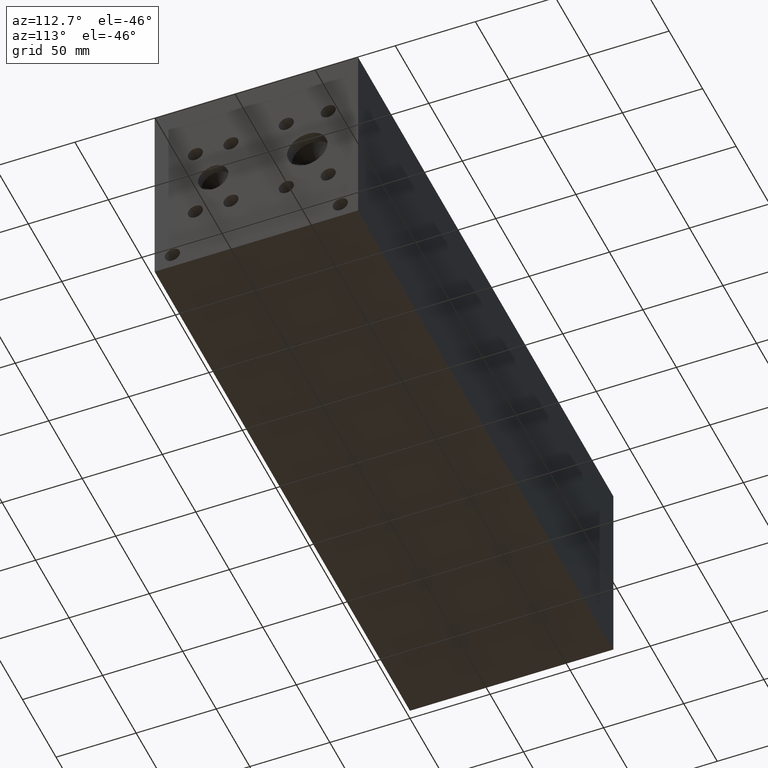
[diagram: clean part render]
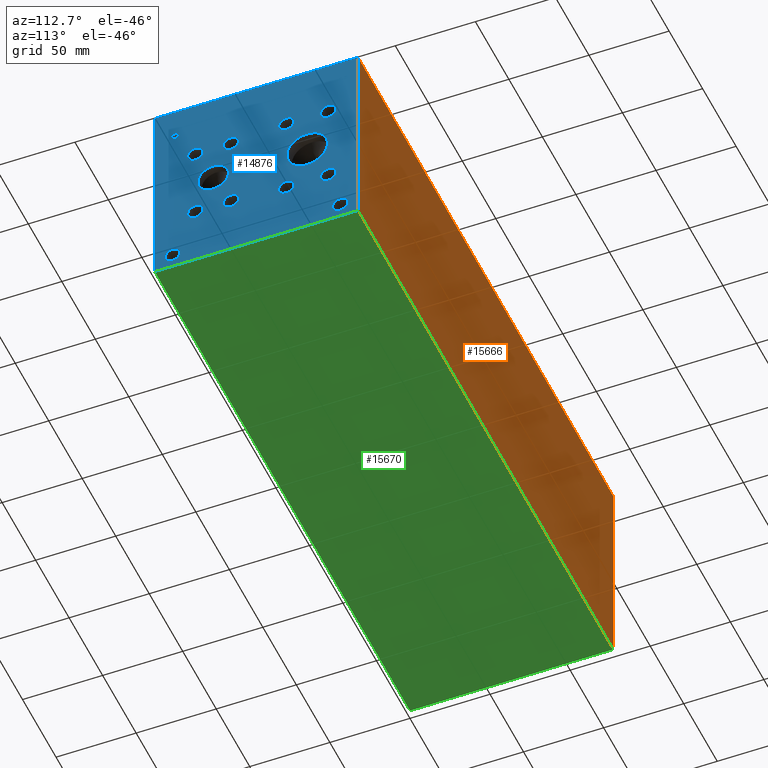
[diagram: same view with three faces highlighted in distinct colors, each labeled with its STEP entity id]
A machine part, auxiliary view with three faces highlighted in distinct colors.
Their STEP definitions:

[orange] entity #15666 — the highlighted planar face has unit normal (0, 1, 0).
#1342=PLANE('',#16826);
#2154=FACE_OUTER_BOUND('',#3129,.T.);
#3129=EDGE_LOOP('',(#14111,#14112,#14113,#14114));
#3191=LINE('',#20666,#4525);
#3253=LINE('',#20976,#4587);
#4490=LINE('',#27114,#5824);
#4491=LINE('',#27115,#5825);
#4525=VECTOR('',#16886,10.);
#4587=VECTOR('',#17034,10.);
#5824=VECTOR('',#20449,10.);
#5825=VECTOR('',#20450,10.);
#6189=VERTEX_POINT('',#20663);
#6190=VERTEX_POINT('',#20665);
#6264=VERTEX_POINT('',#20969);
#6267=VERTEX_POINT('',#20974);
#7745=EDGE_CURVE('',#6189,#6190,#3191,.T.);
#7847=EDGE_CURVE('',#6264,#6267,#3253,.T.);
#9857=EDGE_CURVE('',#6189,#6264,#4490,.T.);
#9858=EDGE_CURVE('',#6190,#6267,#4491,.T.);
#14111=ORIENTED_EDGE('',*,*,#9857,.T.);
#14112=ORIENTED_EDGE('',*,*,#7847,.T.);
#14113=ORIENTED_EDGE('',*,*,#9858,.F.);
#14114=ORIENTED_EDGE('',*,*,#7745,.F.);
#15666=ADVANCED_FACE('',(#2154),#1342,.T.);
#16826=AXIS2_PLACEMENT_3D('',#27113,#20447,#20448);
#16886=DIRECTION('',(0.,0.,1.));
#17034=DIRECTION('',(0.,0.,1.));
#20447=DIRECTION('center_axis',(0.,1.,0.));
#20448=DIRECTION('ref_axis',(-1.,0.,0.));
#20449=DIRECTION('',(-1.,0.,0.));
#20450=DIRECTION('',(-1.,0.,0.));
#20663=CARTESIAN_POINT('',(381.,127.,0.));
#20665=CARTESIAN_POINT('',(381.,127.,127.));
#20666=CARTESIAN_POINT('',(381.,127.,0.));
#20969=CARTESIAN_POINT('',(0.,127.,0.));
#20974=CARTESIAN_POINT('',(0.,127.,127.));
#20976=CARTESIAN_POINT('',(0.,127.,0.));
#27113=CARTESIAN_POINT('Origin',(381.,127.,0.));
#27114=CARTESIAN_POINT('',(381.,127.,0.));
#27115=CARTESIAN_POINT('',(381.,127.,127.));

[blue] entity #14876 — the highlighted planar face has unit normal (1, 0, 0).
#235=CIRCLE('',#15695,12.7);
#236=CIRCLE('',#15696,12.7);
#237=CIRCLE('',#15697,4.7625);
#238=CIRCLE('',#15698,4.7625);
#239=CIRCLE('',#15699,4.7625);
#240=CIRCLE('',#15700,4.7625);
#241=CIRCLE('',#15701,4.7625);
#242=CIRCLE('',#15702,4.7625);
#243=CIRCLE('',#15703,4.7625);
#244=CIRCLE('',#15704,4.7625);
#245=CIRCLE('',#15705,4.7625);
#246=CIRCLE('',#15706,4.7625);
#247=CIRCLE('',#15707,4.7625);
#248=CIRCLE('',#15708,4.7625);
#249=CIRCLE('',#15709,4.7625);
#250=CIRCLE('',#15710,4.7625);
#251=CIRCLE('',#15711,4.7625);
#252=CIRCLE('',#15712,4.7625);
#253=CIRCLE('',#15713,9.525);
#254=CIRCLE('',#15714,9.525);
#255=CIRCLE('',#15715,4.7625);
#256=CIRCLE('',#15716,4.7625);
#257=CIRCLE('',#15717,4.7625);
#258=CIRCLE('',#15718,4.7625);
#735=FACE_BOUND('',#2178,.T.);
#736=FACE_BOUND('',#2179,.T.);
#737=FACE_BOUND('',#2180,.T.);
#738=FACE_BOUND('',#2181,.T.);
#739=FACE_BOUND('',#2182,.T.);
#740=FACE_BOUND('',#2183,.T.);
#741=FACE_BOUND('',#2184,.T.);
#742=FACE_BOUND('',#2185,.T.);
#743=FACE_BOUND('',#2186,.T.);
#744=FACE_BOUND('',#2187,.T.);
#745=FACE_BOUND('',#2188,.T.);
#746=FACE_BOUND('',#2189,.T.);
#747=FACE_BOUND('',#2190,.T.);
#748=FACE_BOUND('',#2191,.T.);
#930=PLANE('',#15694);
#1364=FACE_OUTER_BOUND('',#2177,.T.);
#2177=EDGE_LOOP('',(#9939,#9940,#9941,#9942));
#2178=EDGE_LOOP('',(#9943,#9944));
#2179=EDGE_LOOP('',(#9945,#9946));
#2180=EDGE_LOOP('',(#9947,#9948));
#2181=EDGE_LOOP('',(#9949,#9950));
#2182=EDGE_LOOP('',(#9951,#9952));
#2183=EDGE_LOOP('',(#9953,#9954));
#2184=EDGE_LOOP('',(#9955,#9956));
#2185=EDGE_LOOP('',(#9957,#9958));
#2186=EDGE_LOOP('',(#9959,#9960));
#2187=EDGE_LOOP('',(#9961,#9962));
#2188=EDGE_LOOP('',(#9963,#9964));
#2189=EDGE_LOOP('',(#9965,#9966));
#2190=EDGE_LOOP('',(#9967,#9968,#9969,#9970,#9971,#9972,#9973,#9974));
#2191=EDGE_LOOP('',(#9975,#9976,#9977,#9978,#9979,#9980,#9981,#9982,#9983));
#3174=LINE('',#20597,#4508);
#3177=LINE('',#20603,#4511);
#3180=LINE('',#20609,#4514);
#3183=LINE('',#20615,#4517);
#3186=LINE('',#20621,#4520);
#3190=LINE('',#20664,#4524);
#3191=LINE('',#20666,#4525);
#3192=LINE('',#20668,#4526);
#3193=LINE('',#20669,#4527);
#3194=LINE('',#20720,#4528);
#3195=LINE('',#20722,#4529);
#3196=LINE('',#20724,#4530);
#3197=LINE('',#20726,#4531);
#3198=LINE('',#20728,#4532);
#3199=LINE('',#20730,#4533);
#3200=LINE('',#20732,#4534);
#3201=LINE('',#20733,#4535);
#4508=VECTOR('',#16857,10.);
#4511=VECTOR('',#16862,10.);
#4514=VECTOR('',#16867,10.);
#4517=VECTOR('',#16872,10.);
#4520=VECTOR('',#16877,10.);
#4524=VECTOR('',#16885,10.);
#4525=VECTOR('',#16886,10.);
#4526=VECTOR('',#16887,10.);
#4527=VECTOR('',#16888,10.);
#4528=VECTOR('',#16937,10.);
#4529=VECTOR('',#16938,10.);
#4530=VECTOR('',#16939,10.);
#4531=VECTOR('',#16940,10.);
#4532=VECTOR('',#16941,10.);
#4533=VECTOR('',#16942,10.);
#4534=VECTOR('',#16943,10.);
#4535=VECTOR('',#16944,10.);
#5834=B_SPLINE_CURVE_WITH_KNOTS('',2,(#20564,#20565,#20566,#20567),
 .UNSPECIFIED.,.F.,.F.,(3,1,3),(0.,1.,2.),.UNSPECIFIED.);
#5836=B_SPLINE_CURVE_WITH_KNOTS('',2,(#20585,#20586,#20587,#20588),
 .UNSPECIFIED.,.F.,.F.,(3,1,3),(0.,1.,2.),.UNSPECIFIED.);
#5838=B_SPLINE_CURVE_WITH_KNOTS('',2,(#20634,#20635,#20636,#20637),
 .UNSPECIFIED.,.F.,.F.,(3,1,3),(0.,1.,2.),.UNSPECIFIED.);
#5840=B_SPLINE_CURVE_WITH_KNOTS('',2,(#20652,#20653,#20654,#20655),
 .UNSPECIFIED.,.F.,.F.,(3,1,3),(0.,1.,2.),.UNSPECIFIED.);
#6170=VERTEX_POINT('',#20562);
#6171=VERTEX_POINT('',#20563);
#6174=VERTEX_POINT('',#20584);
#6176=VERTEX_POINT('',#20596);
#6178=VERTEX_POINT('',#20602);
#6180=VERTEX_POINT('',#20608);
#6182=VERTEX_POINT('',#20614);
#6184=VERTEX_POINT('',#20620);
#6186=VERTEX_POINT('',#20633);
#6188=VERTEX_POINT('',#20662);
#6189=VERTEX_POINT('',#20663);
#6190=VERTEX_POINT('',#20665);
#6191=VERTEX_POINT('',#20667);
#6192=VERTEX_POINT('',#20670);
#6193=VERTEX_POINT('',#20671);
#6194=VERTEX_POINT('',#20674);
#6195=VERTEX_POINT('',#20675);
#6196=VERTEX_POINT('',#20678);
#6197=VERTEX_POINT('',#20679);
#6198=VERTEX_POINT('',#20682);
#6199=VERTEX_POINT('',#20683);
#6200=VERTEX_POINT('',#20686);
#6201=VERTEX_POINT('',#20687);
#6202=VERTEX_POINT('',#20690);
#6203=VERTEX_POINT('',#20691);
#6204=VERTEX_POINT('',#20694);
#6205=VERTEX_POINT('',#20695);
#6206=VERTEX_POINT('',#20698);
#6207=VERTEX_POINT('',#20699);
#6208=VERTEX_POINT('',#20702);
#6209=VERTEX_POINT('',#20703);
#6210=VERTEX_POINT('',#20706);
#6211=VERTEX_POINT('',#20707);
#6212=VERTEX_POINT('',#20710);
#6213=VERTEX_POINT('',#20711);
#6214=VERTEX_POINT('',#20714);
#6215=VERTEX_POINT('',#20715);
#6216=VERTEX_POINT('',#20718);
#6217=VERTEX_POINT('',#20719);
#6218=VERTEX_POINT('',#20721);
#6219=VERTEX_POINT('',#20723);
#6220=VERTEX_POINT('',#20725);
#6221=VERTEX_POINT('',#20727);
#6222=VERTEX_POINT('',#20729);
#6223=VERTEX_POINT('',#20731);
#7717=EDGE_CURVE('',#6170,#6171,#5834,.T.);
#7721=EDGE_CURVE('',#6174,#6170,#5836,.T.);
#7724=EDGE_CURVE('',#6176,#6174,#3174,.T.);
#7727=EDGE_CURVE('',#6178,#6176,#3177,.T.);
#7730=EDGE_CURVE('',#6180,#6178,#3180,.T.);
#7733=EDGE_CURVE('',#6182,#6180,#3183,.T.);
#7736=EDGE_CURVE('',#6184,#6182,#3186,.T.);
#7739=EDGE_CURVE('',#6186,#6184,#5838,.T.);
#7742=EDGE_CURVE('',#6171,#6186,#5840,.T.);
#7744=EDGE_CURVE('',#6188,#6189,#3190,.T.);
#7745=EDGE_CURVE('',#6189,#6190,#3191,.T.);
#7746=EDGE_CURVE('',#6191,#6190,#3192,.T.);
#7747=EDGE_CURVE('',#6188,#6191,#3193,.T.);
#7748=EDGE_CURVE('',#6192,#6193,#235,.T.);
#7749=EDGE_CURVE('',#6193,#6192,#236,.T.);
#7750=EDGE_CURVE('',#6194,#6195,#237,.T.);
#7751=EDGE_CURVE('',#6195,#6194,#238,.T.);
#7752=EDGE_CURVE('',#6196,#6197,#239,.T.);
#7753=EDGE_CURVE('',#6197,#6196,#240,.T.);
#7754=EDGE_CURVE('',#6198,#6199,#241,.T.);
#7755=EDGE_CURVE('',#6199,#6198,#242,.T.);
#7756=EDGE_CURVE('',#6200,#6201,#243,.T.);
#7757=EDGE_CURVE('',#6201,#6200,#244,.T.);
#7758=EDGE_CURVE('',#6202,#6203,#245,.T.);
#7759=EDGE_CURVE('',#6203,#6202,#246,.T.);
#7760=EDGE_CURVE('',#6204,#6205,#247,.T.);
#7761=EDGE_CURVE('',#6205,#6204,#248,.T.);
#7762=EDGE_CURVE('',#6206,#6207,#249,.T.);
#7763=EDGE_CURVE('',#6207,#6206,#250,.T.);
#7764=EDGE_CURVE('',#6208,#6209,#251,.T.);
#7765=EDGE_CURVE('',#6209,#6208,#252,.T.);
#7766=EDGE_CURVE('',#6210,#6211,#253,.T.);
#7767=EDGE_CURVE('',#6211,#6210,#254,.T.);
#7768=EDGE_CURVE('',#6212,#6213,#255,.T.);
#7769=EDGE_CURVE('',#6213,#6212,#256,.T.);
#7770=EDGE_CURVE('',#6214,#6215,#257,.T.);
#7771=EDGE_CURVE('',#6215,#6214,#258,.T.);
#7772=EDGE_CURVE('',#6216,#6217,#3194,.T.);
#7773=EDGE_CURVE('',#6217,#6218,#3195,.T.);
#7774=EDGE_CURVE('',#6218,#6219,#3196,.T.);
#7775=EDGE_CURVE('',#6219,#6220,#3197,.T.);
#7776=EDGE_CURVE('',#6220,#6221,#3198,.T.);
#7777=EDGE_CURVE('',#6221,#6222,#3199,.T.);
#7778=EDGE_CURVE('',#6222,#6223,#3200,.T.);
#7779=EDGE_CURVE('',#6223,#6216,#3201,.T.);
#9939=ORIENTED_EDGE('',*,*,#7744,.T.);
#9940=ORIENTED_EDGE('',*,*,#7745,.T.);
#9941=ORIENTED_EDGE('',*,*,#7746,.F.);
#9942=ORIENTED_EDGE('',*,*,#7747,.F.);
#9943=ORIENTED_EDGE('',*,*,#7748,.T.);
#9944=ORIENTED_EDGE('',*,*,#7749,.T.);
#9945=ORIENTED_EDGE('',*,*,#7750,.T.);
#9946=ORIENTED_EDGE('',*,*,#7751,.T.);
#9947=ORIENTED_EDGE('',*,*,#7752,.T.);
#9948=ORIENTED_EDGE('',*,*,#7753,.T.);
#9949=ORIENTED_EDGE('',*,*,#7754,.T.);
#9950=ORIENTED_EDGE('',*,*,#7755,.T.);
#9951=ORIENTED_EDGE('',*,*,#7756,.T.);
#9952=ORIENTED_EDGE('',*,*,#7757,.T.);
#9953=ORIENTED_EDGE('',*,*,#7758,.T.);
#9954=ORIENTED_EDGE('',*,*,#7759,.T.);
#9955=ORIENTED_EDGE('',*,*,#7760,.T.);
#9956=ORIENTED_EDGE('',*,*,#7761,.T.);
#9957=ORIENTED_EDGE('',*,*,#7762,.T.);
#9958=ORIENTED_EDGE('',*,*,#7763,.T.);
#9959=ORIENTED_EDGE('',*,*,#7764,.T.);
#9960=ORIENTED_EDGE('',*,*,#7765,.T.);
#9961=ORIENTED_EDGE('',*,*,#7766,.T.);
#9962=ORIENTED_EDGE('',*,*,#7767,.T.);
#9963=ORIENTED_EDGE('',*,*,#7768,.T.);
#9964=ORIENTED_EDGE('',*,*,#7769,.T.);
#9965=ORIENTED_EDGE('',*,*,#7770,.T.);
#9966=ORIENTED_EDGE('',*,*,#7771,.T.);
#9967=ORIENTED_EDGE('',*,*,#7772,.T.);
#9968=ORIENTED_EDGE('',*,*,#7773,.T.);
#9969=ORIENTED_EDGE('',*,*,#7774,.T.);
#9970=ORIENTED_EDGE('',*,*,#7775,.T.);
#9971=ORIENTED_EDGE('',*,*,#7776,.T.);
#9972=ORIENTED_EDGE('',*,*,#7777,.T.);
#9973=ORIENTED_EDGE('',*,*,#7778,.T.);
#9974=ORIENTED_EDGE('',*,*,#7779,.T.);
#9975=ORIENTED_EDGE('',*,*,#7717,.T.);
#9976=ORIENTED_EDGE('',*,*,#7742,.T.);
#9977=ORIENTED_EDGE('',*,*,#7739,.T.);
#9978=ORIENTED_EDGE('',*,*,#7736,.T.);
#9979=ORIENTED_EDGE('',*,*,#7733,.T.);
#9980=ORIENTED_EDGE('',*,*,#7730,.T.);
#9981=ORIENTED_EDGE('',*,*,#7727,.T.);
#9982=ORIENTED_EDGE('',*,*,#7724,.T.);
#9983=ORIENTED_EDGE('',*,*,#7721,.T.);
#14876=ADVANCED_FACE('',(#1364,#735,#736,#737,#738,#739,#740,#741,#742,
#743,#744,#745,#746,#747,#748),#930,.T.);
#15694=AXIS2_PLACEMENT_3D('',#20661,#16883,#16884);
#15695=AXIS2_PLACEMENT_3D('',#20672,#16889,#16890);
#15696=AXIS2_PLACEMENT_3D('',#20673,#16891,#16892);
#15697=AXIS2_PLACEMENT_3D('',#20676,#16893,#16894);
#15698=AXIS2_PLACEMENT_3D('',#20677,#16895,#16896);
#15699=AXIS2_PLACEMENT_3D('',#20680,#16897,#16898);
#15700=AXIS2_PLACEMENT_3D('',#20681,#16899,#16900);
#15701=AXIS2_PLACEMENT_3D('',#20684,#16901,#16902);
#15702=AXIS2_PLACEMENT_3D('',#20685,#16903,#16904);
#15703=AXIS2_PLACEMENT_3D('',#20688,#16905,#16906);
#15704=AXIS2_PLACEMENT_3D('',#20689,#16907,#16908);
#15705=AXIS2_PLACEMENT_3D('',#20692,#16909,#16910);
#15706=AXIS2_PLACEMENT_3D('',#20693,#16911,#16912);
#15707=AXIS2_PLACEMENT_3D('',#20696,#16913,#16914);
#15708=AXIS2_PLACEMENT_3D('',#20697,#16915,#16916);
#15709=AXIS2_PLACEMENT_3D('',#20700,#16917,#16918);
#15710=AXIS2_PLACEMENT_3D('',#20701,#16919,#16920);
#15711=AXIS2_PLACEMENT_3D('',#20704,#16921,#16922);
#15712=AXIS2_PLACEMENT_3D('',#20705,#16923,#16924);
#15713=AXIS2_PLACEMENT_3D('',#20708,#16925,#16926);
#15714=AXIS2_PLACEMENT_3D('',#20709,#16927,#16928);
#15715=AXIS2_PLACEMENT_3D('',#20712,#16929,#16930);
#15716=AXIS2_PLACEMENT_3D('',#20713,#16931,#16932);
#15717=AXIS2_PLACEMENT_3D('',#20716,#16933,#16934);
#15718=AXIS2_PLACEMENT_3D('',#20717,#16935,#16936);
#16857=DIRECTION('',(0.,1.,0.));
#16862=DIRECTION('',(0.,0.,1.));
#16867=DIRECTION('',(0.,-1.,0.));
#16872=DIRECTION('',(0.,0.,-1.));
#16877=DIRECTION('',(0.,-1.,0.));
#16883=DIRECTION('center_axis',(1.,0.,0.));
#16884=DIRECTION('ref_axis',(0.,1.,0.));
#16885=DIRECTION('',(0.,1.,0.));
#16886=DIRECTION('',(0.,0.,1.));
#16887=DIRECTION('',(0.,1.,0.));
#16888=DIRECTION('',(0.,0.,1.));
#16889=DIRECTION('center_axis',(-1.,0.,0.));
#16890=DIRECTION('ref_axis',(0.,1.,0.));
#16891=DIRECTION('center_axis',(-1.,0.,0.));
#16892=DIRECTION('ref_axis',(0.,1.,0.));
#16893=DIRECTION('center_axis',(-1.,0.,0.));
#16894=DIRECTION('ref_axis',(0.,1.,0.));
#16895=DIRECTION('center_axis',(-1.,0.,0.));
#16896=DIRECTION('ref_axis',(0.,1.,0.));
#16897=DIRECTION('center_axis',(-1.,0.,0.));
#16898=DIRECTION('ref_axis',(0.,1.,0.));
#16899=DIRECTION('center_axis',(-1.,0.,0.));
#16900=DIRECTION('ref_axis',(0.,1.,0.));
#16901=DIRECTION('center_axis',(-1.,0.,0.));
#16902=DIRECTION('ref_axis',(0.,1.,0.));
#16903=DIRECTION('center_axis',(-1.,0.,0.));
#16904=DIRECTION('ref_axis',(0.,1.,0.));
#16905=DIRECTION('center_axis',(-1.,0.,0.));
#16906=DIRECTION('ref_axis',(0.,1.,0.));
#16907=DIRECTION('center_axis',(-1.,0.,0.));
#16908=DIRECTION('ref_axis',(0.,1.,0.));
#16909=DIRECTION('center_axis',(-1.,0.,0.));
#16910=DIRECTION('ref_axis',(0.,1.,0.));
#16911=DIRECTION('center_axis',(-1.,0.,0.));
#16912=DIRECTION('ref_axis',(0.,1.,0.));
#16913=DIRECTION('center_axis',(-1.,0.,0.));
#16914=DIRECTION('ref_axis',(0.,1.,0.));
#16915=DIRECTION('center_axis',(-1.,0.,0.));
#16916=DIRECTION('ref_axis',(0.,1.,0.));
#16917=DIRECTION('center_axis',(-1.,0.,0.));
#16918=DIRECTION('ref_axis',(0.,1.,0.));
#16919=DIRECTION('center_axis',(-1.,0.,0.));
#16920=DIRECTION('ref_axis',(0.,1.,0.));
#16921=DIRECTION('center_axis',(-1.,0.,0.));
#16922=DIRECTION('ref_axis',(0.,1.,0.));
#16923=DIRECTION('center_axis',(-1.,0.,0.));
#16924=DIRECTION('ref_axis',(0.,1.,0.));
#16925=DIRECTION('center_axis',(-1.,0.,0.));
#16926=DIRECTION('ref_axis',(0.,1.,0.));
#16927=DIRECTION('center_axis',(-1.,0.,0.));
#16928=DIRECTION('ref_axis',(0.,1.,0.));
#16929=DIRECTION('center_axis',(-1.,0.,0.));
#16930=DIRECTION('ref_axis',(0.,1.,0.));
#16931=DIRECTION('center_axis',(-1.,0.,0.));
#16932=DIRECTION('ref_axis',(0.,1.,0.));
#16933=DIRECTION('center_axis',(-1.,0.,0.));
#16934=DIRECTION('ref_axis',(0.,1.,0.));
#16935=DIRECTION('center_axis',(-1.,0.,0.));
#16936=DIRECTION('ref_axis',(0.,1.,0.));
#16937=DIRECTION('',(0.,-1.,0.));
#16938=DIRECTION('',(0.,0.,1.));
#16939=DIRECTION('',(0.,-1.,0.));
#16940=DIRECTION('',(0.,0.,1.));
#16941=DIRECTION('',(0.,1.,0.));
#16942=DIRECTION('',(0.,0.,-1.));
#16943=DIRECTION('',(0.,-1.,0.));
#16944=DIRECTION('',(0.,0.,-1.));
#20562=CARTESIAN_POINT('',(381.,13.9589672023594,108.747568143971));
#20563=CARTESIAN_POINT('',(381.,14.715409654532,107.229537372604));
#20564=CARTESIAN_POINT('Ctrl Pts',(381.,13.9589672023594,108.747568143971));
#20565=CARTESIAN_POINT('Ctrl Pts',(381.,14.3140320268486,108.505712393956));
#20566=CARTESIAN_POINT('Ctrl Pts',(381.,14.715409654532,107.759561675827));
#20567=CARTESIAN_POINT('Ctrl Pts',(381.,14.715409654532,107.229537372604));
#20584=CARTESIAN_POINT('',(381.,12.2968521543883,109.143799904633));
#20585=CARTESIAN_POINT('Ctrl Pts',(381.,12.2968521543883,109.143799904633));
#20586=CARTESIAN_POINT('Ctrl Pts',(381.,12.8628975267624,109.143799904633));
#20587=CARTESIAN_POINT('Ctrl Pts',(381.,13.655361048086,108.958548691856));
#20588=CARTESIAN_POINT('Ctrl Pts',(381.,13.9589672023594,108.747568143971));
#20596=CARTESIAN_POINT('',(381.,10.7016333776978,109.143799904633));
#20597=CARTESIAN_POINT('',(381.,5.3508166888489,109.143799904633));
#20602=CARTESIAN_POINT('',(381.,10.7016333776978,102.7938));
#20603=CARTESIAN_POINT('',(381.,10.7016333776978,51.3969));
#20608=CARTESIAN_POINT('',(381.,11.5455555692373,102.7938));
#20609=CARTESIAN_POINT('',(381.,5.77277778461864,102.7938));
#20614=CARTESIAN_POINT('',(381.,11.5455555692373,105.160898829928));
#20615=CARTESIAN_POINT('',(381.,11.5455555692373,52.5804494149639));
#20620=CARTESIAN_POINT('',(381.,12.2608310852372,105.160898829928));
#20621=CARTESIAN_POINT('',(381.,6.13041554261861,105.160898829928));
#20633=CARTESIAN_POINT('',(381.,14.1596560162011,105.81956980869));
#20634=CARTESIAN_POINT('Ctrl Pts',(381.,14.1596560162011,105.81956980869));
#20635=CARTESIAN_POINT('Ctrl Pts',(381.,13.8303205268198,105.495380186331));
#20636=CARTESIAN_POINT('Ctrl Pts',(381.,12.9400855320861,105.160898829928));
#20637=CARTESIAN_POINT('Ctrl Pts',(381.,12.2608310852372,105.160898829928));
#20652=CARTESIAN_POINT('Ctrl Pts',(381.,14.715409654532,107.229537372604));
#20653=CARTESIAN_POINT('Ctrl Pts',(381.,14.715409654532,106.817868010877));
#20654=CARTESIAN_POINT('Ctrl Pts',(381.,14.4220952343018,106.07686315977));
#20655=CARTESIAN_POINT('Ctrl Pts',(381.,14.1596560162011,105.81956980869));
#20661=CARTESIAN_POINT('Origin',(381.,0.,0.));
#20662=CARTESIAN_POINT('',(381.,0.,0.));
#20663=CARTESIAN_POINT('',(381.,127.,0.));
#20664=CARTESIAN_POINT('',(381.,0.,0.));
#20665=CARTESIAN_POINT('',(381.,127.,127.));
#20666=CARTESIAN_POINT('',(381.,127.,0.));
#20667=CARTESIAN_POINT('',(381.,0.,127.));
#20668=CARTESIAN_POINT('',(381.,0.,127.));
#20669=CARTESIAN_POINT('',(381.,0.,0.));
#20670=CARTESIAN_POINT('',(381.,107.95,63.5));
#20671=CARTESIAN_POINT('',(381.,82.55,63.5));
#20672=CARTESIAN_POINT('Origin',(381.,95.25,63.5));
#20673=CARTESIAN_POINT('Origin',(381.,95.25,63.5));
#20674=CARTESIAN_POINT('',(381.,52.3875,39.7002));
#20675=CARTESIAN_POINT('',(381.,42.8625,39.7002));
#20676=CARTESIAN_POINT('Origin',(381.,47.625,39.7002));
#20677=CARTESIAN_POINT('Origin',(381.,47.625,39.7002));
#20678=CARTESIAN_POINT('',(381.,30.1879,87.2998));
#20679=CARTESIAN_POINT('',(381.,20.6629,87.2998));
#20680=CARTESIAN_POINT('Origin',(381.,25.4254,87.2998));
#20681=CARTESIAN_POINT('Origin',(381.,25.4254,87.2998));
#20682=CARTESIAN_POINT('',(381.,113.0935,89.6874));
#20683=CARTESIAN_POINT('',(381.,103.5685,89.6874));
#20684=CARTESIAN_POINT('Origin',(381.,108.331,89.6874));
#20685=CARTESIAN_POINT('Origin',(381.,108.331,89.6874));
#20686=CARTESIAN_POINT('',(381.,86.9315,37.3126));
#20687=CARTESIAN_POINT('',(381.,77.4065,37.3126));
#20688=CARTESIAN_POINT('Origin',(381.,82.169,37.3126));
#20689=CARTESIAN_POINT('Origin',(381.,82.169,37.3126));
#20690=CARTESIAN_POINT('',(381.,113.0935,37.3126));
#20691=CARTESIAN_POINT('',(381.,103.5685,37.3126));
#20692=CARTESIAN_POINT('Origin',(381.,108.331,37.3126));
#20693=CARTESIAN_POINT('Origin',(381.,108.331,37.3126));
#20694=CARTESIAN_POINT('',(381.,86.9315,89.6874));
#20695=CARTESIAN_POINT('',(381.,77.4065,89.6874));
#20696=CARTESIAN_POINT('Origin',(381.,82.169,89.6874));
#20697=CARTESIAN_POINT('Origin',(381.,82.169,89.6874));
#20698=CARTESIAN_POINT('',(381.,30.1879,39.7002));
#20699=CARTESIAN_POINT('',(381.,20.6629,39.7002));
#20700=CARTESIAN_POINT('Origin',(381.,25.4254,39.7002));
#20701=CARTESIAN_POINT('Origin',(381.,25.4254,39.7002));
#20702=CARTESIAN_POINT('',(381.,52.3875,87.2998));
#20703=CARTESIAN_POINT('',(381.,42.8625,87.2998));
#20704=CARTESIAN_POINT('Origin',(381.,47.625,87.2998));
#20705=CARTESIAN_POINT('Origin',(381.,47.625,87.2998));
#20706=CARTESIAN_POINT('',(381.,46.0502,63.5));
#20707=CARTESIAN_POINT('',(381.,27.0002,63.5));
#20708=CARTESIAN_POINT('Origin',(381.,36.5252,63.5));
#20709=CARTESIAN_POINT('Origin',(381.,36.5252,63.5));
#20710=CARTESIAN_POINT('',(381.,120.6373,9.525));
#20711=CARTESIAN_POINT('',(381.,111.1123,9.525));
#20712=CARTESIAN_POINT('Origin',(381.,115.8748,9.525));
#20713=CARTESIAN_POINT('Origin',(381.,115.8748,9.525));
#20714=CARTESIAN_POINT('',(381.,15.8877,9.525));
#20715=CARTESIAN_POINT('',(381.,6.3627,9.525));
#20716=CARTESIAN_POINT('Origin',(381.,11.1252,9.525));
#20717=CARTESIAN_POINT('Origin',(381.,11.1252,9.525));
#20718=CARTESIAN_POINT('',(381.,117.802565271453,107.8738));
#20719=CARTESIAN_POINT('',(381.,116.958643079914,107.8738));
#20720=CARTESIAN_POINT('',(381.,58.9012826357265,107.8738));
#20721=CARTESIAN_POINT('',(381.,116.958643079914,113.472503319482));
#20722=CARTESIAN_POINT('',(381.,116.958643079914,53.9369));
#20723=CARTESIAN_POINT('',(381.,114.828254132978,113.472503319482));
#20724=CARTESIAN_POINT('',(381.,58.4793215399568,113.472503319482));
#20725=CARTESIAN_POINT('',(381.,114.828254132978,114.223799904633));
#20726=CARTESIAN_POINT('',(381.,114.828254132978,56.7362516597408));
#20727=CARTESIAN_POINT('',(381.,119.932954218388,114.223799904633));
#20728=CARTESIAN_POINT('',(381.,57.4141270664892,114.223799904633));
#20729=CARTESIAN_POINT('',(381.,119.932954218388,113.472503319482));
#20730=CARTESIAN_POINT('',(381.,119.932954218388,57.1118999523163));
#20731=CARTESIAN_POINT('',(381.,117.802565271453,113.472503319482));
#20732=CARTESIAN_POINT('',(381.,59.966477109194,113.472503319482));
#20733=CARTESIAN_POINT('',(381.,117.802565271453,56.7362516597408));

[green] entity #15670 — the highlighted planar face has unit normal (0, 0, 1).
#1346=PLANE('',#16830);
#2158=FACE_OUTER_BOUND('',#3157,.T.);
#3157=EDGE_LOOP('',(#14181,#14182,#14183,#14184));
#3190=LINE('',#20664,#4524);
#3250=LINE('',#20971,#4584);
#3591=LINE('',#23156,#4925);
#4490=LINE('',#27114,#5824);
#4524=VECTOR('',#16885,10.);
#4584=VECTOR('',#17031,10.);
#4925=VECTOR('',#17612,10.);
#5824=VECTOR('',#20449,10.);
#6188=VERTEX_POINT('',#20662);
#6189=VERTEX_POINT('',#20663);
#6264=VERTEX_POINT('',#20969);
#6265=VERTEX_POINT('',#20970);
#7744=EDGE_CURVE('',#6188,#6189,#3190,.T.);
#7844=EDGE_CURVE('',#6264,#6265,#3250,.T.);
#8379=EDGE_CURVE('',#6265,#6188,#3591,.T.);
#9857=EDGE_CURVE('',#6189,#6264,#4490,.T.);
#14181=ORIENTED_EDGE('',*,*,#8379,.F.);
#14182=ORIENTED_EDGE('',*,*,#7844,.F.);
#14183=ORIENTED_EDGE('',*,*,#9857,.F.);
#14184=ORIENTED_EDGE('',*,*,#7744,.F.);
#15670=ADVANCED_FACE('',(#2158),#1346,.F.);
#16830=AXIS2_PLACEMENT_3D('',#27119,#20457,#20458);
#16885=DIRECTION('',(0.,1.,0.));
#17031=DIRECTION('',(0.,-1.,0.));
#17612=DIRECTION('',(1.,0.,0.));
#20449=DIRECTION('',(-1.,0.,0.));
#20457=DIRECTION('center_axis',(0.,0.,1.));
#20458=DIRECTION('ref_axis',(1.,0.,0.));
#20662=CARTESIAN_POINT('',(381.,0.,0.));
#20663=CARTESIAN_POINT('',(381.,127.,0.));
#20664=CARTESIAN_POINT('',(381.,0.,0.));
#20969=CARTESIAN_POINT('',(0.,127.,0.));
#20970=CARTESIAN_POINT('',(0.,0.,0.));
#20971=CARTESIAN_POINT('',(0.,127.,0.));
#23156=CARTESIAN_POINT('',(0.,0.,0.));
#27114=CARTESIAN_POINT('',(381.,127.,0.));
#27119=CARTESIAN_POINT('Origin',(190.5,63.5,0.));